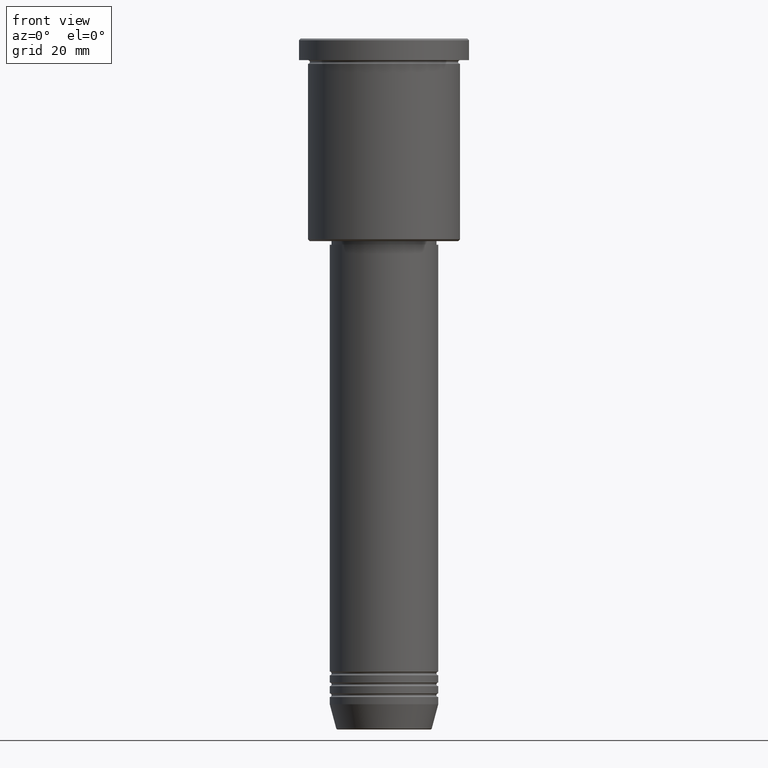
[diagram: clean part render]
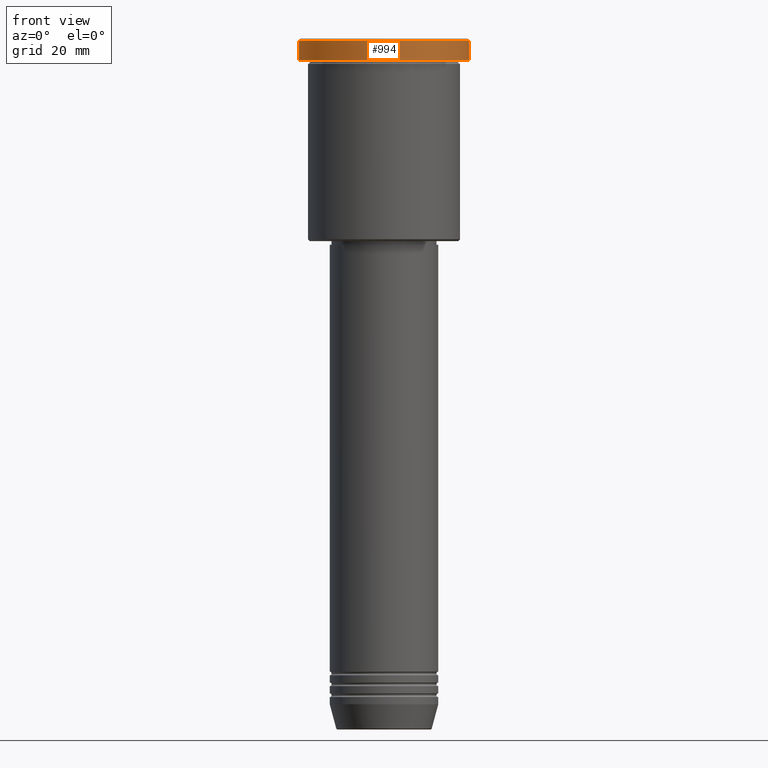
[diagram: same view with one face highlighted and labeled with its STEP entity id]
A machine part, front view. The second image highlights one B-rep face of the part: STEP entity #994.
In plain terms, the highlighted cylindrical surface (partial cylindrical patch) has radius 23.5 mm, axis along (-0, -0, 1).
Its self-contained STEP definition (entity closure, byte-faithful):
#46 = EDGE_CURVE ( 'NONE', #444, #750, #464, .T. ) ;
#69 = DIRECTION ( 'NONE',  ( 1.000000000000000000, 0.000000000000000000, 0.000000000000000000 ) ) ;
#106 = AXIS2_PLACEMENT_3D ( 'NONE', #515, #884, #69 ) ;
#137 = CARTESIAN_POINT ( 'NONE',  ( 0.000000000000000000, 0.000000000000000000, -0.5000000000000281997 ) ) ;
#163 = ORIENTED_EDGE ( 'NONE', *, *, #46, .T. ) ;
#190 = ORIENTED_EDGE ( 'NONE', *, *, #790, .T. ) ;
#207 = DIRECTION ( 'NONE',  ( 1.000000000000000000, 0.000000000000000000, 0.000000000000000000 ) ) ;
#248 = CIRCLE ( 'NONE', #889, 23.50000000000000000 ) ;
#296 = DIRECTION ( 'NONE',  ( 0.000000000000000000, 0.000000000000000000, -1.000000000000000000 ) ) ;
#299 = FACE_OUTER_BOUND ( 'NONE', #1025, .T. ) ;
#343 = LINE ( 'NONE', #881, #1177 ) ;
#347 = ORIENTED_EDGE ( 'NONE', *, *, #858, .F. ) ;
#406 = VERTEX_POINT ( 'NONE', #436 ) ;
#436 = CARTESIAN_POINT ( 'NONE',  ( 23.50000000000000000, 0.000000000000000000, -0.5000000000000281997 ) ) ;
#444 = VERTEX_POINT ( 'NONE', #787 ) ;
#464 = CIRCLE ( 'NONE', #106, 23.50000000000000000 ) ;
#515 = CARTESIAN_POINT ( 'NONE',  ( 0.000000000000000000, 0.000000000000000000, -5.999999999999994671 ) ) ;
#528 = CARTESIAN_POINT ( 'NONE',  ( 0.000000000000000000, 0.000000000000000000, 0.000000000000000000 ) ) ;
#568 = EDGE_CURVE ( 'NONE', #750, #406, #1173, .T. ) ;
#670 = CARTESIAN_POINT ( 'NONE',  ( 23.50000000000000000, 0.000000000000000000, -5.999999999999994671 ) ) ;
#682 = VECTOR ( 'NONE', #990, 1000.000000000000000 ) ;
#742 = CARTESIAN_POINT ( 'NONE',  ( 23.50000000000000000, 0.000000000000000000, 0.000000000000000000 ) ) ;
#750 = VERTEX_POINT ( 'NONE', #670 ) ;
#780 = DIRECTION ( 'NONE',  ( -0.000000000000000000, -0.000000000000000000, 1.000000000000000000 ) ) ;
#787 = CARTESIAN_POINT ( 'NONE',  ( -23.50000000000000000, 2.877919977996280320E-15, -5.999999999999994671 ) ) ;
#790 = EDGE_CURVE ( 'NONE', #406, #916, #248, .T. ) ;
#858 = EDGE_CURVE ( 'NONE', #444, #916, #343, .T. ) ;
#870 = AXIS2_PLACEMENT_3D ( 'NONE', #528, #895, #1013 ) ;
#881 = CARTESIAN_POINT ( 'NONE',  ( -23.50000000000000000, 2.877919977996280320E-15, 0.000000000000000000 ) ) ;
#884 = DIRECTION ( 'NONE',  ( -0.000000000000000000, -0.000000000000000000, 1.000000000000000000 ) ) ;
#889 = AXIS2_PLACEMENT_3D ( 'NONE', #137, #296, #207 ) ;
#895 = DIRECTION ( 'NONE',  ( -0.000000000000000000, -0.000000000000000000, 1.000000000000000000 ) ) ;
#916 = VERTEX_POINT ( 'NONE', #1043 ) ;
#937 = ORIENTED_EDGE ( 'NONE', *, *, #568, .T. ) ;
#989 = CYLINDRICAL_SURFACE ( 'NONE', #870, 23.50000000000000000 ) ;
#990 = DIRECTION ( 'NONE',  ( -0.000000000000000000, -0.000000000000000000, 1.000000000000000000 ) ) ;
#994 = ADVANCED_FACE ( 'NONE', ( #299 ), #989, .T. ) ;
#1013 = DIRECTION ( 'NONE',  ( 1.000000000000000000, 0.000000000000000000, 0.000000000000000000 ) ) ;
#1025 = EDGE_LOOP ( 'NONE', ( #347, #163, #937, #190 ) ) ;
#1043 = CARTESIAN_POINT ( 'NONE',  ( -23.50000000000000000, 2.877919977996280320E-15, -0.5000000000000281997 ) ) ;
#1173 = LINE ( 'NONE', #742, #682 ) ;
#1177 = VECTOR ( 'NONE', #780, 1000.000000000000000 ) ;